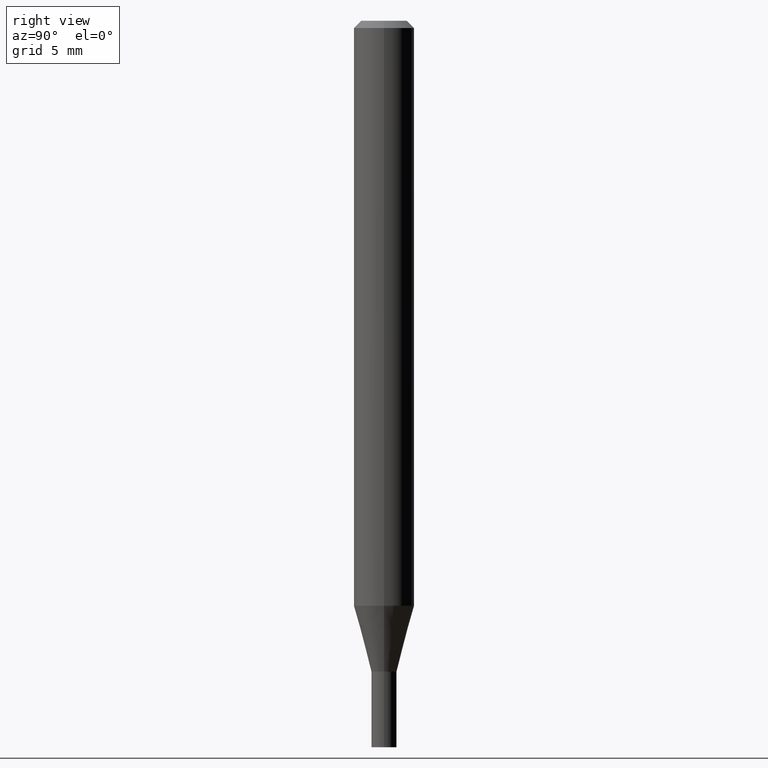
[diagram: clean part render]
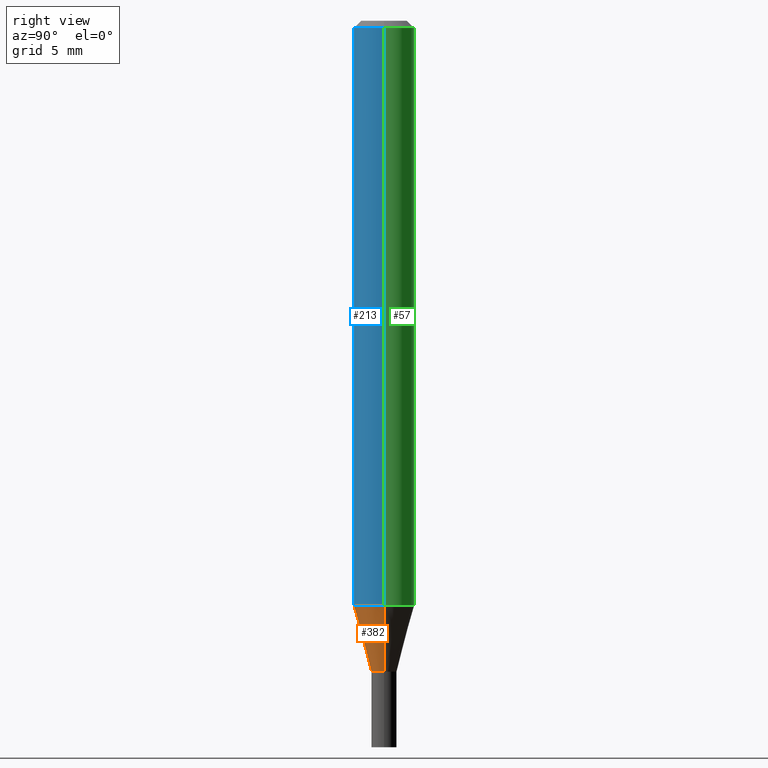
[diagram: same view with three faces highlighted in distinct colors, each labeled with its STEP entity id]
A machine part, right view with three faces highlighted in distinct colors.
Their STEP definitions:

[orange] entity #382 — the highlighted conical surface has half-angle 15 deg.
#9 = DIRECTION ( 'NONE',  ( 1.000000000000000000, -6.982962677686279332E-15, 0.000000000000000000 ) ) ;
#16 = ORIENTED_EDGE ( 'NONE', *, *, #218, .F. ) ;
#35 = CARTESIAN_POINT ( 'NONE',  ( 2.953588670608038575E-29, -4.216941839521379856E-15, -1.207780145523734916 ) ) ;
#42 = EDGE_CURVE ( 'NONE', #375, #243, #363, .T. ) ;
#56 = AXIS2_PLACEMENT_3D ( 'NONE', #339, #362, #9 ) ;
#71 = DIRECTION ( 'NONE',  ( -2.445468806185136597E-29, 3.491481338843145583E-15, 1.000000000000000000 ) ) ;
#73 = CONICAL_SURFACE ( 'NONE', #56, 0.02599999999999964145, 0.2617993877991496854 ) ;
#76 = CARTESIAN_POINT ( 'NONE',  ( -0.02599999999999964145, -4.140331218889440579E-15, -1.344000000000000306 ) ) ;
#89 = ORIENTED_EDGE ( 'NONE', *, *, #351, .F. ) ;
#109 = DIRECTION ( 'NONE',  ( 1.000000000000000000, -6.982962677686270655E-15, 0.000000000000000000 ) ) ;
#112 = AXIS2_PLACEMENT_3D ( 'NONE', #35, #71, #109 ) ;
#121 = LINE ( 'NONE', #263, #180 ) ;
#133 = CARTESIAN_POINT ( 'NONE',  ( 3.286710075512824263E-29, -4.692550919405188553E-15, -1.344000000000000306 ) ) ;
#178 = DIRECTION ( 'NONE',  ( 1.000000000000000000, -6.982962677686279332E-15, 0.000000000000000000 ) ) ;
#180 = VECTOR ( 'NONE', #334, 39.37007874015748143 ) ;
#217 = CARTESIAN_POINT ( 'NONE',  ( 0.02599999999999964145, -4.874107949025028868E-15, -1.344000000000000306 ) ) ;
#218 = EDGE_CURVE ( 'NONE', #343, #414, #310, .T. ) ;
#220 = FACE_OUTER_BOUND ( 'NONE', #452, .T. ) ;
#243 = VERTEX_POINT ( 'NONE', #217 ) ;
#249 = DIRECTION ( 'NONE',  ( -2.445468806185136597E-29, 3.491481338843145583E-15, 1.000000000000000000 ) ) ;
#263 = CARTESIAN_POINT ( 'NONE',  ( -0.02599999999999964145, -4.507809808107564707E-15, -1.344000000000000306 ) ) ;
#271 = LINE ( 'NONE', #297, #296 ) ;
#296 = VECTOR ( 'NONE', #331, 39.37007874015748143 ) ;
#297 = CARTESIAN_POINT ( 'NONE',  ( 0.02599999999999964145, -4.874107949025028868E-15, -1.344000000000000306 ) ) ;
#310 = CIRCLE ( 'NONE', #112, 0.06250000000000000000 ) ;
#331 = DIRECTION ( 'NONE',  ( 0.2588190451025210170, 1.565188264969624531E-15, 0.9659258262890682012 ) ) ;
#334 = DIRECTION ( 'NONE',  ( -0.2588190451025210170, 5.211531920934547886E-15, 0.9659258262890682012 ) ) ;
#339 = CARTESIAN_POINT ( 'NONE',  ( 3.286710075512824263E-29, -4.692550919405188553E-15, -1.344000000000000306 ) ) ;
#343 = VERTEX_POINT ( 'NONE', #377 ) ;
#344 = EDGE_CURVE ( 'NONE', #243, #414, #271, .T. ) ;
#351 = EDGE_CURVE ( 'NONE', #375, #343, #121, .T. ) ;
#355 = ORIENTED_EDGE ( 'NONE', *, *, #344, .T. ) ;
#362 = DIRECTION ( 'NONE',  ( -2.445468806185136597E-29, 3.491481338843145583E-15, 1.000000000000000000 ) ) ;
#363 = CIRCLE ( 'NONE', #446, 0.02599999999999964145 ) ;
#375 = VERTEX_POINT ( 'NONE', #76 ) ;
#377 = CARTESIAN_POINT ( 'NONE',  ( -0.06250000000000000000, -3.772852629671316451E-15, -1.207780145523734916 ) ) ;
#382 = ADVANCED_FACE ( 'NONE', ( #220 ), #73, .T. ) ;
#404 = CARTESIAN_POINT ( 'NONE',  ( 0.06250000000000000000, -4.653377006876771526E-15, -1.207780145523734916 ) ) ;
#414 = VERTEX_POINT ( 'NONE', #404 ) ;
#446 = AXIS2_PLACEMENT_3D ( 'NONE', #133, #249, #178 ) ;
#448 = ORIENTED_EDGE ( 'NONE', *, *, #42, .T. ) ;
#452 = EDGE_LOOP ( 'NONE', ( #89, #448, #355, #16 ) ) ;

[blue] entity #213 — the highlighted cylindrical surface (edge-blend (fillet) strip) has radius 1.5875 mm, axis along (-0, 0, 1).
#8 = EDGE_CURVE ( 'NONE', #414, #31, #24, .T. ) ;
#24 = LINE ( 'NONE', #280, #61 ) ;
#27 = DIRECTION ( 'NONE',  ( -2.445468806185136877E-29, 3.491481338843145188E-15, 1.000000000000000000 ) ) ;
#29 = CARTESIAN_POINT ( 'NONE',  ( 0.06250000000000000000, -4.888073874380388472E-16, -0.01499999999999999944 ) ) ;
#31 = VERTEX_POINT ( 'NONE', #29 ) ;
#35 = CARTESIAN_POINT ( 'NONE',  ( 2.953588670608038575E-29, -4.216941839521379856E-15, -1.207780145523734916 ) ) ;
#47 = AXIS2_PLACEMENT_3D ( 'NONE', #376, #181, #397 ) ;
#48 = CYLINDRICAL_SURFACE ( 'NONE', #47, 0.06250000000000000000 ) ;
#61 = VECTOR ( 'NONE', #27, 39.37007874015748143 ) ;
#71 = DIRECTION ( 'NONE',  ( -2.445468806185136597E-29, 3.491481338843145583E-15, 1.000000000000000000 ) ) ;
#95 = ORIENTED_EDGE ( 'NONE', *, *, #118, .F. ) ;
#109 = DIRECTION ( 'NONE',  ( 1.000000000000000000, -6.982962677686270655E-15, 0.000000000000000000 ) ) ;
#112 = AXIS2_PLACEMENT_3D ( 'NONE', #35, #71, #109 ) ;
#118 = EDGE_CURVE ( 'NONE', #343, #206, #419, .T. ) ;
#142 = CARTESIAN_POINT ( 'NONE',  ( -0.06250000000000000000, 4.440892098500626162E-16, -3.074334431409316114E-30 ) ) ;
#147 = FACE_OUTER_BOUND ( 'NONE', #229, .T. ) ;
#166 = DIRECTION ( 'NONE',  ( -2.445468806185136597E-29, 3.491481338843145583E-15, 1.000000000000000000 ) ) ;
#172 = ORIENTED_EDGE ( 'NONE', *, *, #8, .T. ) ;
#181 = DIRECTION ( 'NONE',  ( -2.445468806185136597E-29, 3.491481338843145583E-15, 1.000000000000000000 ) ) ;
#205 = AXIS2_PLACEMENT_3D ( 'NONE', #235, #166, #347 ) ;
#206 = VERTEX_POINT ( 'NONE', #438 ) ;
#213 = ADVANCED_FACE ( 'NONE', ( #147 ), #48, .T. ) ;
#216 = CIRCLE ( 'NONE', #205, 0.06250000000000000000 ) ;
#218 = EDGE_CURVE ( 'NONE', #343, #414, #310, .T. ) ;
#229 = EDGE_LOOP ( 'NONE', ( #95, #268, #172, #384 ) ) ;
#235 = CARTESIAN_POINT ( 'NONE',  ( 3.668203209277705088E-31, -5.237222008264718399E-17, -0.01499999999999999944 ) ) ;
#268 = ORIENTED_EDGE ( 'NONE', *, *, #218, .T. ) ;
#280 = CARTESIAN_POINT ( 'NONE',  ( 0.06250000000000000000, -4.364351673553916694E-16, 3.047610484872459871E-30 ) ) ;
#284 = DIRECTION ( 'NONE',  ( -2.445468806185136877E-29, 3.491481338843145188E-15, 1.000000000000000000 ) ) ;
#307 = EDGE_CURVE ( 'NONE', #206, #31, #216, .T. ) ;
#310 = CIRCLE ( 'NONE', #112, 0.06250000000000000000 ) ;
#328 = VECTOR ( 'NONE', #284, 39.37007874015748143 ) ;
#343 = VERTEX_POINT ( 'NONE', #377 ) ;
#347 = DIRECTION ( 'NONE',  ( 1.000000000000000000, -6.982962677686266711E-15, 0.000000000000000000 ) ) ;
#376 = CARTESIAN_POINT ( 'NONE',  ( 0.000000000000000000, 0.000000000000000000, 0.000000000000000000 ) ) ;
#377 = CARTESIAN_POINT ( 'NONE',  ( -0.06250000000000000000, -3.772852629671316451E-15, -1.207780145523734916 ) ) ;
#384 = ORIENTED_EDGE ( 'NONE', *, *, #307, .F. ) ;
#397 = DIRECTION ( 'NONE',  ( 1.000000000000000000, -6.982962677686266711E-15, 4.876176775795935793E-29 ) ) ;
#404 = CARTESIAN_POINT ( 'NONE',  ( 0.06250000000000000000, -4.653377006876771526E-15, -1.207780145523734916 ) ) ;
#414 = VERTEX_POINT ( 'NONE', #404 ) ;
#419 = LINE ( 'NONE', #142, #328 ) ;
#438 = CARTESIAN_POINT ( 'NONE',  ( -0.06250000000000000000, -1.690567819951950852E-15, -0.01499999999999999944 ) ) ;

[green] entity #57 — the highlighted cylindrical surface (edge-blend (fillet) strip) has radius 1.5875 mm, axis along (-0, 0, 1).
#4 = CIRCLE ( 'NONE', #91, 0.06250000000000000000 ) ;
#8 = EDGE_CURVE ( 'NONE', #414, #31, #24, .T. ) ;
#24 = LINE ( 'NONE', #280, #61 ) ;
#27 = DIRECTION ( 'NONE',  ( -2.445468806185136877E-29, 3.491481338843145188E-15, 1.000000000000000000 ) ) ;
#29 = CARTESIAN_POINT ( 'NONE',  ( 0.06250000000000000000, -4.888073874380388472E-16, -0.01499999999999999944 ) ) ;
#31 = VERTEX_POINT ( 'NONE', #29 ) ;
#57 = ADVANCED_FACE ( 'NONE', ( #131 ), #348, .T. ) ;
#58 = DIRECTION ( 'NONE',  ( -2.445468806185136597E-29, 3.491481338843145583E-15, 1.000000000000000000 ) ) ;
#61 = VECTOR ( 'NONE', #27, 39.37007874015748143 ) ;
#83 = DIRECTION ( 'NONE',  ( 1.000000000000000000, -6.982962677686266711E-15, 0.000000000000000000 ) ) ;
#87 = DIRECTION ( 'NONE',  ( -2.445468806185136597E-29, 3.491481338843145583E-15, 1.000000000000000000 ) ) ;
#91 = AXIS2_PLACEMENT_3D ( 'NONE', #161, #232, #302 ) ;
#101 = AXIS2_PLACEMENT_3D ( 'NONE', #418, #58, #200 ) ;
#118 = EDGE_CURVE ( 'NONE', #343, #206, #419, .T. ) ;
#127 = EDGE_LOOP ( 'NONE', ( #159, #197, #251, #303 ) ) ;
#131 = FACE_OUTER_BOUND ( 'NONE', #127, .T. ) ;
#142 = CARTESIAN_POINT ( 'NONE',  ( -0.06250000000000000000, 4.440892098500626162E-16, -3.074334431409316114E-30 ) ) ;
#159 = ORIENTED_EDGE ( 'NONE', *, *, #456, .T. ) ;
#161 = CARTESIAN_POINT ( 'NONE',  ( 2.953588670608038575E-29, -4.216941839521379856E-15, -1.207780145523734916 ) ) ;
#192 = EDGE_CURVE ( 'NONE', #31, #206, #321, .T. ) ;
#197 = ORIENTED_EDGE ( 'NONE', *, *, #118, .T. ) ;
#200 = DIRECTION ( 'NONE',  ( 1.000000000000000000, -6.982962677686266711E-15, 4.876176775795935793E-29 ) ) ;
#206 = VERTEX_POINT ( 'NONE', #438 ) ;
#232 = DIRECTION ( 'NONE',  ( -2.445468806185136597E-29, 3.491481338843145583E-15, 1.000000000000000000 ) ) ;
#251 = ORIENTED_EDGE ( 'NONE', *, *, #192, .F. ) ;
#280 = CARTESIAN_POINT ( 'NONE',  ( 0.06250000000000000000, -4.364351673553916694E-16, 3.047610484872459871E-30 ) ) ;
#284 = DIRECTION ( 'NONE',  ( -2.445468806185136877E-29, 3.491481338843145188E-15, 1.000000000000000000 ) ) ;
#302 = DIRECTION ( 'NONE',  ( 1.000000000000000000, -6.982962677686270655E-15, 0.000000000000000000 ) ) ;
#303 = ORIENTED_EDGE ( 'NONE', *, *, #8, .F. ) ;
#321 = CIRCLE ( 'NONE', #336, 0.06250000000000000000 ) ;
#328 = VECTOR ( 'NONE', #284, 39.37007874015748143 ) ;
#336 = AXIS2_PLACEMENT_3D ( 'NONE', #408, #87, #83 ) ;
#343 = VERTEX_POINT ( 'NONE', #377 ) ;
#348 = CYLINDRICAL_SURFACE ( 'NONE', #101, 0.06250000000000000000 ) ;
#377 = CARTESIAN_POINT ( 'NONE',  ( -0.06250000000000000000, -3.772852629671316451E-15, -1.207780145523734916 ) ) ;
#404 = CARTESIAN_POINT ( 'NONE',  ( 0.06250000000000000000, -4.653377006876771526E-15, -1.207780145523734916 ) ) ;
#408 = CARTESIAN_POINT ( 'NONE',  ( 3.668203209277705088E-31, -5.237222008264718399E-17, -0.01499999999999999944 ) ) ;
#414 = VERTEX_POINT ( 'NONE', #404 ) ;
#418 = CARTESIAN_POINT ( 'NONE',  ( 0.000000000000000000, 0.000000000000000000, 0.000000000000000000 ) ) ;
#419 = LINE ( 'NONE', #142, #328 ) ;
#438 = CARTESIAN_POINT ( 'NONE',  ( -0.06250000000000000000, -1.690567819951950852E-15, -0.01499999999999999944 ) ) ;
#456 = EDGE_CURVE ( 'NONE', #414, #343, #4, .T. ) ;